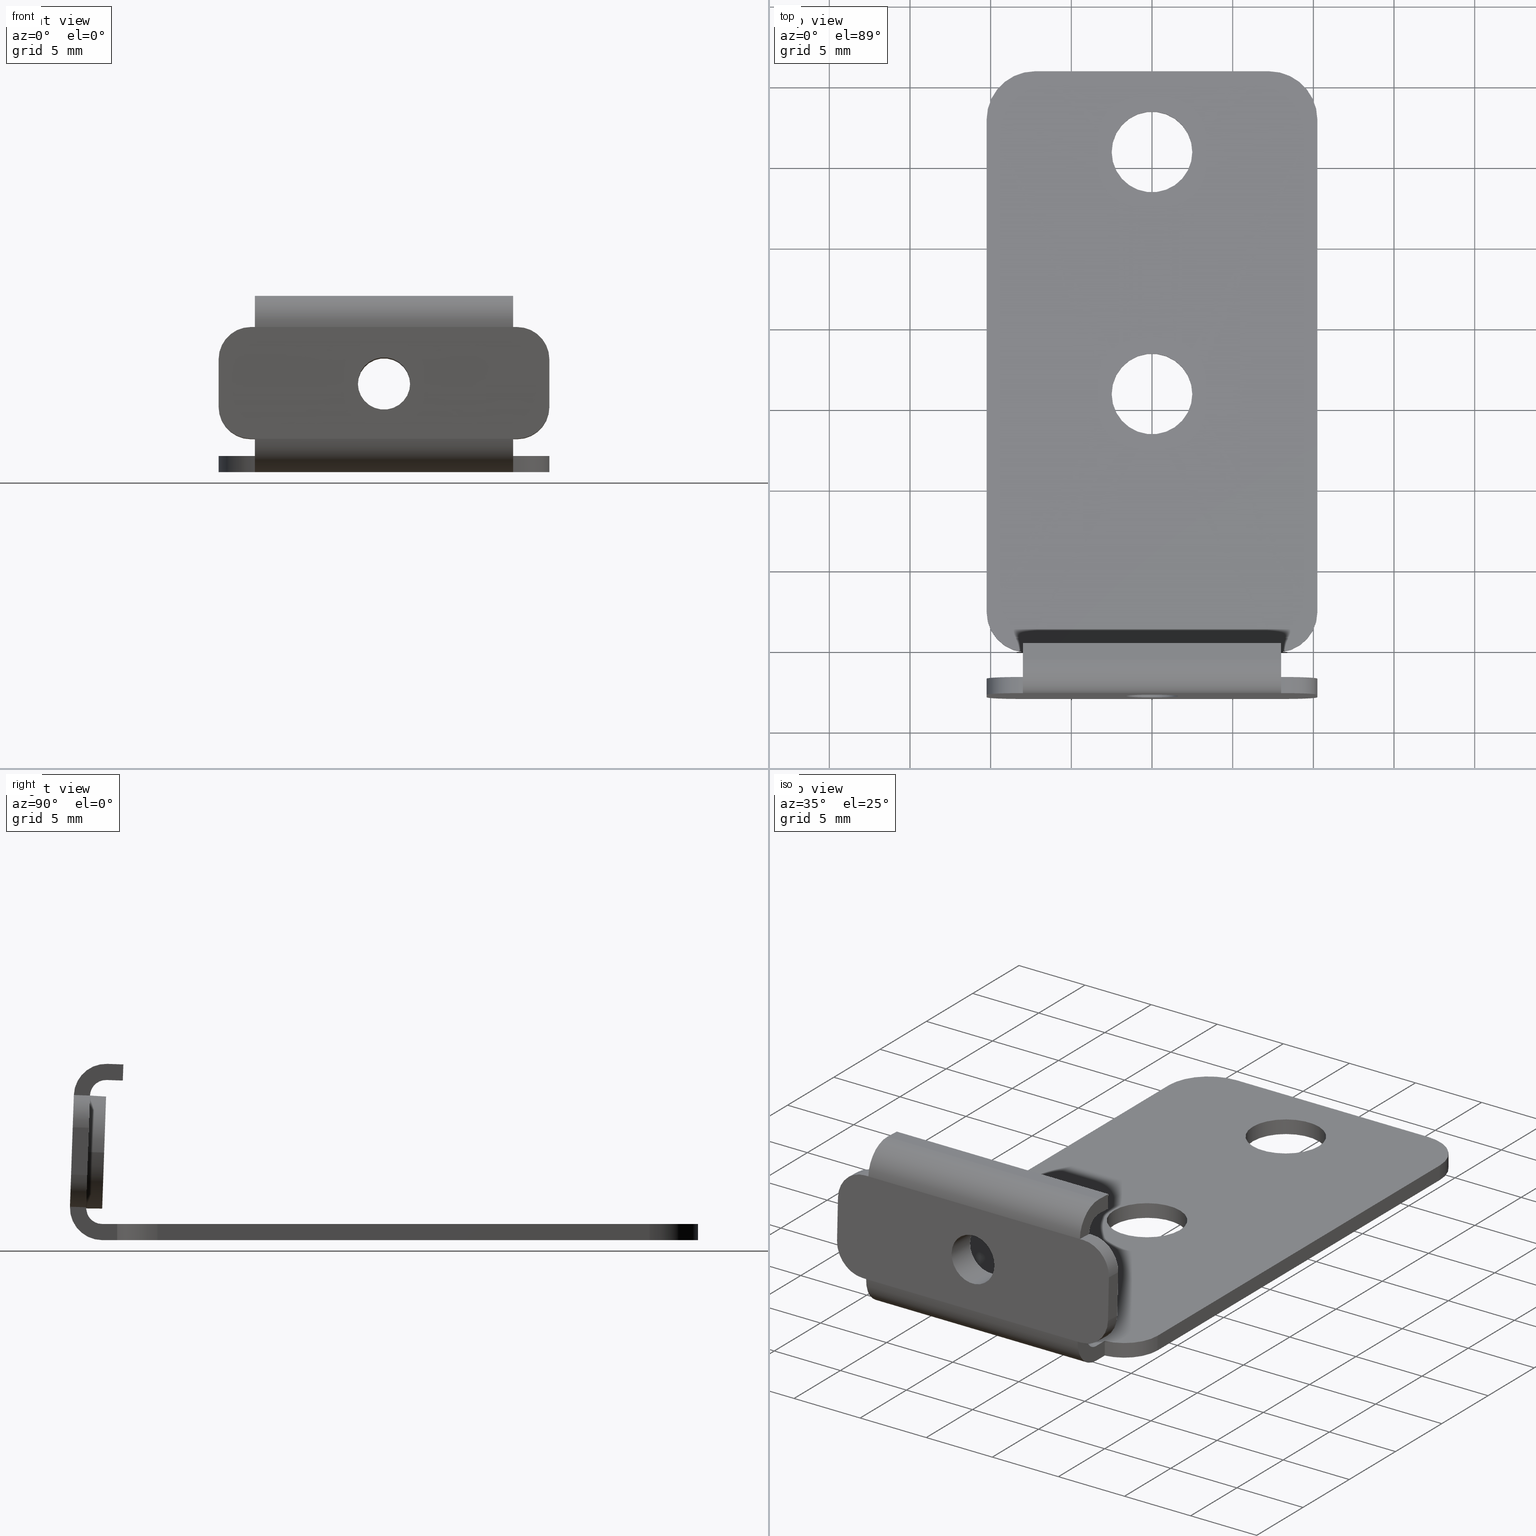
[diagram: canonical four-view strip — front | top / right | iso, engineering-drawing reading convention]
A machine part, canonical four-view strip (front | top / right | iso — engineering-drawing reading convention). The complete STEP part file that produces these views, byte-faithful:
ISO-10303-21;
HEADER;
/* Generated by software containing ST-Developer
 * from STEP Tools, Inc. (www.steptools.com) 
 */

FILE_DESCRIPTION(
/* description */ ('Lasche'),
/* implementation_level */ '2;1');

FILE_NAME(
/* name */ '100002722.stp',
/* time_stamp */ '2024-01-18T08:42:39+01:00',
/* author */ ('selema'),
/* organization */ (''),
/* preprocessor_version */ 'ST-DEVELOPER v20',
/* originating_system */ 'Autodesk Inventor 2024',
/* authorisation */ '');

FILE_SCHEMA (('AUTOMOTIVE_DESIGN { 1 0 10303 214 3 1 1 }'));
ENDSEC;

DATA;
#10=MECHANICAL_DESIGN_GEOMETRIC_PRESENTATION_REPRESENTATION('',(#13),#1276);
#11=SHAPE_REPRESENTATION_RELATIONSHIP('SRR','None',#1283,#12);
#12=ADVANCED_BREP_SHAPE_REPRESENTATION('',(#14),#1275);
#13=STYLED_ITEM('',(#1292),#14);
#14=MANIFOLD_SOLID_BREP('Volumenk\X\F6rper2',#738);
#15=B_SPLINE_CURVE_WITH_KNOTS('',3,(#1148,#1149,#1150,#1151,#1152,#1153),
 .UNSPECIFIED.,.F.,.F.,(4,2,4),(0.245160806914058,0.312360595900493,0.379560384886928),
 .UNSPECIFIED.);
#16=FACE_BOUND('',#99,.T.);
#17=FACE_BOUND('',#106,.T.);
#18=FACE_BOUND('',#123,.T.);
#19=FACE_BOUND('',#124,.T.);
#20=FACE_BOUND('',#136,.T.);
#21=FACE_BOUND('',#137,.T.);
#22=PLANE('',#764);
#23=PLANE('',#765);
#24=PLANE('',#770);
#25=PLANE('',#771);
#26=PLANE('',#775);
#27=PLANE('',#776);
#28=PLANE('',#781);
#29=PLANE('',#782);
#30=PLANE('',#789);
#31=PLANE('',#796);
#32=PLANE('',#797);
#33=PLANE('',#798);
#34=PLANE('',#800);
#35=PLANE('',#802);
#36=PLANE('',#803);
#37=PLANE('',#804);
#38=PLANE('',#806);
#39=PLANE('',#810);
#40=PLANE('',#811);
#41=PLANE('',#812);
#42=PLANE('',#813);
#43=PLANE('',#824);
#44=PLANE('',#829);
#45=PLANE('',#832);
#46=PLANE('',#835);
#47=PLANE('',#836);
#48=FACE_OUTER_BOUND('',#90,.T.);
#49=FACE_OUTER_BOUND('',#91,.T.);
#50=FACE_OUTER_BOUND('',#92,.T.);
#51=FACE_OUTER_BOUND('',#93,.T.);
#52=FACE_OUTER_BOUND('',#94,.T.);
#53=FACE_OUTER_BOUND('',#95,.T.);
#54=FACE_OUTER_BOUND('',#96,.T.);
#55=FACE_OUTER_BOUND('',#97,.T.);
#56=FACE_OUTER_BOUND('',#98,.T.);
#57=FACE_OUTER_BOUND('',#100,.T.);
#58=FACE_OUTER_BOUND('',#101,.T.);
#59=FACE_OUTER_BOUND('',#102,.T.);
#60=FACE_OUTER_BOUND('',#103,.T.);
#61=FACE_OUTER_BOUND('',#104,.T.);
#62=FACE_OUTER_BOUND('',#105,.T.);
#63=FACE_OUTER_BOUND('',#107,.T.);
#64=FACE_OUTER_BOUND('',#108,.T.);
#65=FACE_OUTER_BOUND('',#109,.T.);
#66=FACE_OUTER_BOUND('',#110,.T.);
#67=FACE_OUTER_BOUND('',#111,.T.);
#68=FACE_OUTER_BOUND('',#112,.T.);
#69=FACE_OUTER_BOUND('',#113,.T.);
#70=FACE_OUTER_BOUND('',#114,.T.);
#71=FACE_OUTER_BOUND('',#115,.T.);
#72=FACE_OUTER_BOUND('',#116,.T.);
#73=FACE_OUTER_BOUND('',#117,.T.);
#74=FACE_OUTER_BOUND('',#118,.T.);
#75=FACE_OUTER_BOUND('',#119,.T.);
#76=FACE_OUTER_BOUND('',#120,.T.);
#77=FACE_OUTER_BOUND('',#121,.T.);
#78=FACE_OUTER_BOUND('',#122,.T.);
#79=FACE_OUTER_BOUND('',#125,.T.);
#80=FACE_OUTER_BOUND('',#126,.T.);
#81=FACE_OUTER_BOUND('',#127,.T.);
#82=FACE_OUTER_BOUND('',#128,.T.);
#83=FACE_OUTER_BOUND('',#129,.T.);
#84=FACE_OUTER_BOUND('',#130,.T.);
#85=FACE_OUTER_BOUND('',#131,.T.);
#86=FACE_OUTER_BOUND('',#132,.T.);
#87=FACE_OUTER_BOUND('',#133,.T.);
#88=FACE_OUTER_BOUND('',#134,.T.);
#89=FACE_OUTER_BOUND('',#135,.T.);
#90=EDGE_LOOP('',(#474,#475,#476,#477));
#91=EDGE_LOOP('',(#478,#479,#480,#481));
#92=EDGE_LOOP('',(#482,#483,#484,#485,#486,#487,#488,#489));
#93=EDGE_LOOP('',(#490,#491,#492,#493));
#94=EDGE_LOOP('',(#494,#495,#496,#497));
#95=EDGE_LOOP('',(#498,#499,#500,#501));
#96=EDGE_LOOP('',(#502,#503,#504,#505));
#97=EDGE_LOOP('',(#506,#507,#508,#509));
#98=EDGE_LOOP('',(#510,#511,#512,#513,#514,#515,#516,#517,#518,#519,#520,
#521));
#99=EDGE_LOOP('',(#522));
#100=EDGE_LOOP('',(#523,#524,#525,#526));
#101=EDGE_LOOP('',(#527,#528,#529,#530));
#102=EDGE_LOOP('',(#531,#532,#533,#534));
#103=EDGE_LOOP('',(#535,#536,#537,#538));
#104=EDGE_LOOP('',(#539,#540,#541,#542,#543,#544,#545));
#105=EDGE_LOOP('',(#546));
#106=EDGE_LOOP('',(#547));
#107=EDGE_LOOP('',(#548,#549,#550,#551,#552,#553));
#108=EDGE_LOOP('',(#554,#555,#556,#557));
#109=EDGE_LOOP('',(#558,#559,#560,#561));
#110=EDGE_LOOP('',(#562,#563,#564,#565));
#111=EDGE_LOOP('',(#566,#567,#568,#569));
#112=EDGE_LOOP('',(#570,#571,#572,#573));
#113=EDGE_LOOP('',(#574,#575,#576,#577));
#114=EDGE_LOOP('',(#578,#579,#580,#581));
#115=EDGE_LOOP('',(#582,#583,#584,#585));
#116=EDGE_LOOP('',(#586,#587,#588,#589,#590));
#117=EDGE_LOOP('',(#591,#592,#593,#594,#595,#596,#597,#598,#599));
#118=EDGE_LOOP('',(#600,#601,#602,#603));
#119=EDGE_LOOP('',(#604,#605,#606,#607));
#120=EDGE_LOOP('',(#608,#609,#610,#611));
#121=EDGE_LOOP('',(#612,#613,#614,#615));
#122=EDGE_LOOP('',(#616,#617,#618,#619,#620,#621,#622,#623,#624,#625));
#123=EDGE_LOOP('',(#626));
#124=EDGE_LOOP('',(#627));
#125=EDGE_LOOP('',(#628,#629,#630,#631));
#126=EDGE_LOOP('',(#632,#633,#634,#635));
#127=EDGE_LOOP('',(#636,#637,#638,#639));
#128=EDGE_LOOP('',(#640,#641,#642,#643));
#129=EDGE_LOOP('',(#644,#645,#646,#647));
#130=EDGE_LOOP('',(#648,#649,#650,#651));
#131=EDGE_LOOP('',(#652,#653,#654,#655));
#132=EDGE_LOOP('',(#656,#657,#658,#659));
#133=EDGE_LOOP('',(#660,#661,#662,#663));
#134=EDGE_LOOP('',(#664,#665,#666,#667));
#135=EDGE_LOOP('',(#668,#669,#670,#671,#672,#673,#674,#675,#676,#677));
#136=EDGE_LOOP('',(#678));
#137=EDGE_LOOP('',(#679));
#138=LINE('',#1065,#206);
#139=LINE('',#1068,#207);
#140=LINE('',#1071,#208);
#141=LINE('',#1073,#209);
#142=LINE('',#1074,#210);
#143=LINE('',#1077,#211);
#144=LINE('',#1081,#212);
#145=LINE('',#1083,#213);
#146=LINE('',#1086,#214);
#147=LINE('',#1089,#215);
#148=LINE('',#1092,#216);
#149=LINE('',#1095,#217);
#150=LINE('',#1096,#218);
#151=LINE('',#1098,#219);
#152=LINE('',#1104,#220);
#153=LINE('',#1107,#221);
#154=LINE('',#1110,#222);
#155=LINE('',#1112,#223);
#156=LINE('',#1113,#224);
#157=LINE('',#1115,#225);
#158=LINE('',#1117,#226);
#159=LINE('',#1121,#227);
#160=LINE('',#1122,#228);
#161=LINE('',#1129,#229);
#162=LINE('',#1130,#230);
#163=LINE('',#1133,#231);
#164=LINE('',#1134,#232);
#165=LINE('',#1136,#233);
#166=LINE('',#1140,#234);
#167=LINE('',#1145,#235);
#168=LINE('',#1157,#236);
#169=LINE('',#1161,#237);
#170=LINE('',#1166,#238);
#171=LINE('',#1171,#239);
#172=LINE('',#1173,#240);
#173=LINE('',#1175,#241);
#174=LINE('',#1176,#242);
#175=LINE('',#1179,#243);
#176=LINE('',#1181,#244);
#177=LINE('',#1182,#245);
#178=LINE('',#1184,#246);
#179=LINE('',#1190,#247);
#180=LINE('',#1191,#248);
#181=LINE('',#1193,#249);
#182=LINE('',#1196,#250);
#183=LINE('',#1202,#251);
#184=LINE('',#1205,#252);
#185=LINE('',#1207,#253);
#186=LINE('',#1210,#254);
#187=LINE('',#1212,#255);
#188=LINE('',#1213,#256);
#189=LINE('',#1216,#257);
#190=LINE('',#1220,#258);
#191=LINE('',#1224,#259);
#192=LINE('',#1228,#260);
#193=LINE('',#1237,#261);
#194=LINE('',#1241,#262);
#195=LINE('',#1245,#263);
#196=LINE('',#1246,#264);
#197=LINE('',#1247,#265);
#198=LINE('',#1251,#266);
#199=LINE('',#1255,#267);
#200=LINE('',#1258,#268);
#201=LINE('',#1259,#269);
#202=LINE('',#1263,#270);
#203=LINE('',#1266,#271);
#204=LINE('',#1267,#272);
#205=LINE('',#1271,#273);
#206=VECTOR('',#843,10.);
#207=VECTOR('',#846,10.);
#208=VECTOR('',#849,10.);
#209=VECTOR('',#850,10.);
#210=VECTOR('',#851,10.);
#211=VECTOR('',#854,10.);
#212=VECTOR('',#857,10.);
#213=VECTOR('',#858,10.);
#214=VECTOR('',#861,10.);
#215=VECTOR('',#864,10.);
#216=VECTOR('',#867,10.);
#217=VECTOR('',#870,10.);
#218=VECTOR('',#871,10.);
#219=VECTOR('',#874,10.);
#220=VECTOR('',#879,10.);
#221=VECTOR('',#882,10.);
#222=VECTOR('',#885,10.);
#223=VECTOR('',#886,10.);
#224=VECTOR('',#887,10.);
#225=VECTOR('',#890,10.);
#226=VECTOR('',#891,10.);
#227=VECTOR('',#894,10.);
#228=VECTOR('',#895,10.);
#229=VECTOR('',#902,10.);
#230=VECTOR('',#903,10.);
#231=VECTOR('',#906,10.);
#232=VECTOR('',#907,10.);
#233=VECTOR('',#910,10.);
#234=VECTOR('',#915,1.621);
#235=VECTOR('',#920,3.5);
#236=VECTOR('',#929,10.);
#237=VECTOR('',#932,10.);
#238=VECTOR('',#937,10.);
#239=VECTOR('',#944,10.);
#240=VECTOR('',#945,1.44);
#241=VECTOR('',#946,10.);
#242=VECTOR('',#947,1.44);
#243=VECTOR('',#950,10.);
#244=VECTOR('',#951,1.44);
#245=VECTOR('',#952,10.);
#246=VECTOR('',#955,10.);
#247=VECTOR('',#964,10.);
#248=VECTOR('',#965,10.);
#249=VECTOR('',#968,10.);
#250=VECTOR('',#973,10.);
#251=VECTOR('',#980,10.);
#252=VECTOR('',#985,10.);
#253=VECTOR('',#988,10.);
#254=VECTOR('',#991,10.);
#255=VECTOR('',#992,10.);
#256=VECTOR('',#993,10.);
#257=VECTOR('',#996,10.);
#258=VECTOR('',#999,10.);
#259=VECTOR('',#1002,10.);
#260=VECTOR('',#1005,10.);
#261=VECTOR('',#1016,2.5);
#262=VECTOR('',#1021,2.5);
#263=VECTOR('',#1024,10.);
#264=VECTOR('',#1025,10.);
#265=VECTOR('',#1026,10.);
#266=VECTOR('',#1031,10.);
#267=VECTOR('',#1036,10.);
#268=VECTOR('',#1039,10.);
#269=VECTOR('',#1040,10.);
#270=VECTOR('',#1045,10.);
#271=VECTOR('',#1048,10.);
#272=VECTOR('',#1049,10.);
#273=VECTOR('',#1056,10.);
#274=CIRCLE('',#762,2.);
#275=CIRCLE('',#763,2.);
#276=CIRCLE('',#766,2.);
#277=CIRCLE('',#767,3.5);
#278=CIRCLE('',#769,2.);
#279=CIRCLE('',#773,2.);
#280=CIRCLE('',#774,2.);
#281=CIRCLE('',#777,2.);
#282=CIRCLE('',#778,1.621);
#283=CIRCLE('',#780,2.);
#284=CIRCLE('',#784,1.621);
#285=CIRCLE('',#786,3.5);
#286=CIRCLE('',#787,3.5);
#287=CIRCLE('',#788,3.5);
#288=CIRCLE('',#791,1.);
#289=CIRCLE('',#792,1.);
#290=CIRCLE('',#794,2.);
#291=CIRCLE('',#795,2.);
#292=CIRCLE('',#799,1.);
#293=CIRCLE('',#801,1.);
#294=CIRCLE('',#808,2.);
#295=CIRCLE('',#809,2.);
#296=CIRCLE('',#814,2.5);
#297=CIRCLE('',#815,3.);
#298=CIRCLE('',#816,3.);
#299=CIRCLE('',#817,2.5);
#300=CIRCLE('',#818,2.5);
#301=CIRCLE('',#819,2.5);
#302=CIRCLE('',#821,2.5);
#303=CIRCLE('',#823,2.5);
#304=CIRCLE('',#826,2.5);
#305=CIRCLE('',#828,2.5);
#306=CIRCLE('',#831,3.);
#307=CIRCLE('',#834,3.);
#308=VERTEX_POINT('',#1061);
#309=VERTEX_POINT('',#1062);
#310=VERTEX_POINT('',#1064);
#311=VERTEX_POINT('',#1066);
#312=VERTEX_POINT('',#1070);
#313=VERTEX_POINT('',#1072);
#314=VERTEX_POINT('',#1076);
#315=VERTEX_POINT('',#1078);
#316=VERTEX_POINT('',#1080);
#317=VERTEX_POINT('',#1082);
#318=VERTEX_POINT('',#1084);
#319=VERTEX_POINT('',#1088);
#320=VERTEX_POINT('',#1090);
#321=VERTEX_POINT('',#1094);
#322=VERTEX_POINT('',#1100);
#323=VERTEX_POINT('',#1101);
#324=VERTEX_POINT('',#1103);
#325=VERTEX_POINT('',#1105);
#326=VERTEX_POINT('',#1109);
#327=VERTEX_POINT('',#1111);
#328=VERTEX_POINT('',#1116);
#329=VERTEX_POINT('',#1118);
#330=VERTEX_POINT('',#1120);
#331=VERTEX_POINT('',#1123);
#332=VERTEX_POINT('',#1126);
#333=VERTEX_POINT('',#1127);
#334=VERTEX_POINT('',#1132);
#335=VERTEX_POINT('',#1138);
#336=VERTEX_POINT('',#1142);
#337=VERTEX_POINT('',#1144);
#338=VERTEX_POINT('',#1146);
#339=VERTEX_POINT('',#1158);
#340=VERTEX_POINT('',#1160);
#341=VERTEX_POINT('',#1164);
#342=VERTEX_POINT('',#1165);
#343=VERTEX_POINT('',#1170);
#344=VERTEX_POINT('',#1172);
#345=VERTEX_POINT('',#1174);
#346=VERTEX_POINT('',#1178);
#347=VERTEX_POINT('',#1180);
#348=VERTEX_POINT('',#1189);
#349=VERTEX_POINT('',#1199);
#350=VERTEX_POINT('',#1201);
#351=VERTEX_POINT('',#1209);
#352=VERTEX_POINT('',#1211);
#353=VERTEX_POINT('',#1215);
#354=VERTEX_POINT('',#1217);
#355=VERTEX_POINT('',#1219);
#356=VERTEX_POINT('',#1221);
#357=VERTEX_POINT('',#1223);
#358=VERTEX_POINT('',#1225);
#359=VERTEX_POINT('',#1227);
#360=VERTEX_POINT('',#1230);
#361=VERTEX_POINT('',#1232);
#362=VERTEX_POINT('',#1235);
#363=VERTEX_POINT('',#1239);
#364=VERTEX_POINT('',#1243);
#365=VERTEX_POINT('',#1244);
#366=VERTEX_POINT('',#1249);
#367=VERTEX_POINT('',#1253);
#368=VERTEX_POINT('',#1257);
#369=VERTEX_POINT('',#1261);
#370=VERTEX_POINT('',#1265);
#371=EDGE_CURVE('',#308,#309,#274,.T.);
#372=EDGE_CURVE('',#309,#310,#138,.T.);
#373=EDGE_CURVE('',#310,#311,#275,.T.);
#374=EDGE_CURVE('',#311,#308,#139,.T.);
#375=EDGE_CURVE('',#312,#309,#140,.T.);
#376=EDGE_CURVE('',#312,#313,#141,.T.);
#377=EDGE_CURVE('',#310,#313,#142,.T.);
#378=EDGE_CURVE('',#308,#314,#143,.T.);
#379=EDGE_CURVE('',#315,#314,#276,.T.);
#380=EDGE_CURVE('',#315,#316,#144,.T.);
#381=EDGE_CURVE('',#316,#317,#145,.T.);
#382=EDGE_CURVE('',#317,#318,#277,.T.);
#383=EDGE_CURVE('',#318,#312,#146,.T.);
#384=EDGE_CURVE('',#314,#319,#147,.T.);
#385=EDGE_CURVE('',#319,#320,#278,.T.);
#386=EDGE_CURVE('',#320,#315,#148,.T.);
#387=EDGE_CURVE('',#321,#320,#149,.T.);
#388=EDGE_CURVE('',#321,#316,#150,.T.);
#389=EDGE_CURVE('',#319,#311,#151,.T.);
#390=EDGE_CURVE('',#322,#323,#279,.T.);
#391=EDGE_CURVE('',#323,#324,#152,.T.);
#392=EDGE_CURVE('',#324,#325,#280,.T.);
#393=EDGE_CURVE('',#325,#322,#153,.T.);
#394=EDGE_CURVE('',#325,#326,#154,.T.);
#395=EDGE_CURVE('',#326,#327,#155,.T.);
#396=EDGE_CURVE('',#327,#322,#156,.T.);
#397=EDGE_CURVE('',#313,#326,#157,.T.);
#398=EDGE_CURVE('',#328,#324,#158,.T.);
#399=EDGE_CURVE('',#329,#328,#281,.T.);
#400=EDGE_CURVE('',#330,#329,#159,.T.);
#401=EDGE_CURVE('',#330,#321,#160,.T.);
#402=EDGE_CURVE('',#331,#331,#282,.T.);
#403=EDGE_CURVE('',#332,#333,#283,.T.);
#404=EDGE_CURVE('',#333,#329,#161,.T.);
#405=EDGE_CURVE('',#328,#332,#162,.T.);
#406=EDGE_CURVE('',#333,#334,#163,.T.);
#407=EDGE_CURVE('',#334,#330,#164,.T.);
#408=EDGE_CURVE('',#323,#332,#165,.T.);
#409=EDGE_CURVE('',#335,#335,#284,.T.);
#410=EDGE_CURVE('',#335,#331,#166,.T.);
#411=EDGE_CURVE('',#336,#336,#285,.T.);
#412=EDGE_CURVE('',#336,#337,#167,.T.);
#413=EDGE_CURVE('',#338,#337,#286,.T.);
#414=EDGE_CURVE('',#318,#338,#15,.T.);
#415=EDGE_CURVE('',#337,#317,#287,.T.);
#416=EDGE_CURVE('',#327,#338,#168,.T.);
#417=EDGE_CURVE('',#327,#339,#288,.T.);
#418=EDGE_CURVE('',#340,#339,#169,.T.);
#419=EDGE_CURVE('',#312,#340,#289,.T.);
#420=EDGE_CURVE('',#341,#342,#170,.T.);
#421=EDGE_CURVE('',#321,#341,#290,.T.);
#422=EDGE_CURVE('',#342,#330,#291,.T.);
#423=EDGE_CURVE('',#342,#343,#171,.T.);
#424=EDGE_CURVE('',#344,#343,#172,.T.);
#425=EDGE_CURVE('',#344,#345,#173,.T.);
#426=EDGE_CURVE('',#345,#342,#174,.T.);
#427=EDGE_CURVE('',#343,#346,#175,.T.);
#428=EDGE_CURVE('',#347,#346,#176,.T.);
#429=EDGE_CURVE('',#347,#344,#177,.T.);
#430=EDGE_CURVE('',#346,#341,#178,.T.);
#431=EDGE_CURVE('',#346,#316,#292,.T.);
#432=EDGE_CURVE('',#343,#334,#293,.T.);
#433=EDGE_CURVE('',#341,#348,#179,.T.);
#434=EDGE_CURVE('',#347,#348,#180,.T.);
#435=EDGE_CURVE('',#348,#345,#181,.T.);
#436=EDGE_CURVE('',#317,#334,#182,.T.);
#437=EDGE_CURVE('',#349,#313,#294,.T.);
#438=EDGE_CURVE('',#350,#349,#183,.T.);
#439=EDGE_CURVE('',#326,#350,#295,.T.);
#440=EDGE_CURVE('',#349,#340,#184,.T.);
#441=EDGE_CURVE('',#339,#350,#185,.T.);
#442=EDGE_CURVE('',#351,#350,#186,.T.);
#443=EDGE_CURVE('',#352,#351,#187,.T.);
#444=EDGE_CURVE('',#352,#339,#188,.T.);
#445=EDGE_CURVE('',#349,#353,#189,.T.);
#446=EDGE_CURVE('',#353,#354,#296,.T.);
#447=EDGE_CURVE('',#354,#355,#190,.T.);
#448=EDGE_CURVE('',#355,#356,#297,.T.);
#449=EDGE_CURVE('',#356,#357,#191,.T.);
#450=EDGE_CURVE('',#357,#358,#298,.T.);
#451=EDGE_CURVE('',#358,#359,#192,.T.);
#452=EDGE_CURVE('',#359,#351,#299,.T.);
#453=EDGE_CURVE('',#360,#360,#300,.T.);
#454=EDGE_CURVE('',#361,#361,#301,.T.);
#455=EDGE_CURVE('',#362,#362,#302,.T.);
#456=EDGE_CURVE('',#362,#361,#193,.T.);
#457=EDGE_CURVE('',#363,#363,#303,.T.);
#458=EDGE_CURVE('',#363,#360,#194,.T.);
#459=EDGE_CURVE('',#364,#365,#195,.T.);
#460=EDGE_CURVE('',#364,#355,#196,.T.);
#461=EDGE_CURVE('',#365,#354,#197,.T.);
#462=EDGE_CURVE('',#365,#366,#304,.T.);
#463=EDGE_CURVE('',#366,#353,#198,.T.);
#464=EDGE_CURVE('',#352,#367,#305,.T.);
#465=EDGE_CURVE('',#367,#359,#199,.T.);
#466=EDGE_CURVE('',#367,#368,#200,.T.);
#467=EDGE_CURVE('',#368,#358,#201,.T.);
#468=EDGE_CURVE('',#368,#369,#306,.T.);
#469=EDGE_CURVE('',#369,#357,#202,.T.);
#470=EDGE_CURVE('',#369,#370,#203,.T.);
#471=EDGE_CURVE('',#370,#356,#204,.T.);
#472=EDGE_CURVE('',#370,#364,#307,.T.);
#473=EDGE_CURVE('',#340,#366,#205,.T.);
#474=ORIENTED_EDGE('',*,*,#371,.T.);
#475=ORIENTED_EDGE('',*,*,#372,.T.);
#476=ORIENTED_EDGE('',*,*,#373,.T.);
#477=ORIENTED_EDGE('',*,*,#374,.T.);
#478=ORIENTED_EDGE('',*,*,#372,.F.);
#479=ORIENTED_EDGE('',*,*,#375,.F.);
#480=ORIENTED_EDGE('',*,*,#376,.T.);
#481=ORIENTED_EDGE('',*,*,#377,.F.);
#482=ORIENTED_EDGE('',*,*,#371,.F.);
#483=ORIENTED_EDGE('',*,*,#378,.T.);
#484=ORIENTED_EDGE('',*,*,#379,.F.);
#485=ORIENTED_EDGE('',*,*,#380,.T.);
#486=ORIENTED_EDGE('',*,*,#381,.T.);
#487=ORIENTED_EDGE('',*,*,#382,.T.);
#488=ORIENTED_EDGE('',*,*,#383,.T.);
#489=ORIENTED_EDGE('',*,*,#375,.T.);
#490=ORIENTED_EDGE('',*,*,#379,.T.);
#491=ORIENTED_EDGE('',*,*,#384,.T.);
#492=ORIENTED_EDGE('',*,*,#385,.T.);
#493=ORIENTED_EDGE('',*,*,#386,.T.);
#494=ORIENTED_EDGE('',*,*,#386,.F.);
#495=ORIENTED_EDGE('',*,*,#387,.F.);
#496=ORIENTED_EDGE('',*,*,#388,.T.);
#497=ORIENTED_EDGE('',*,*,#380,.F.);
#498=ORIENTED_EDGE('',*,*,#374,.F.);
#499=ORIENTED_EDGE('',*,*,#389,.F.);
#500=ORIENTED_EDGE('',*,*,#384,.F.);
#501=ORIENTED_EDGE('',*,*,#378,.F.);
#502=ORIENTED_EDGE('',*,*,#390,.T.);
#503=ORIENTED_EDGE('',*,*,#391,.T.);
#504=ORIENTED_EDGE('',*,*,#392,.T.);
#505=ORIENTED_EDGE('',*,*,#393,.T.);
#506=ORIENTED_EDGE('',*,*,#393,.F.);
#507=ORIENTED_EDGE('',*,*,#394,.T.);
#508=ORIENTED_EDGE('',*,*,#395,.T.);
#509=ORIENTED_EDGE('',*,*,#396,.T.);
#510=ORIENTED_EDGE('',*,*,#373,.F.);
#511=ORIENTED_EDGE('',*,*,#377,.T.);
#512=ORIENTED_EDGE('',*,*,#397,.T.);
#513=ORIENTED_EDGE('',*,*,#394,.F.);
#514=ORIENTED_EDGE('',*,*,#392,.F.);
#515=ORIENTED_EDGE('',*,*,#398,.F.);
#516=ORIENTED_EDGE('',*,*,#399,.F.);
#517=ORIENTED_EDGE('',*,*,#400,.F.);
#518=ORIENTED_EDGE('',*,*,#401,.T.);
#519=ORIENTED_EDGE('',*,*,#387,.T.);
#520=ORIENTED_EDGE('',*,*,#385,.F.);
#521=ORIENTED_EDGE('',*,*,#389,.T.);
#522=ORIENTED_EDGE('',*,*,#402,.T.);
#523=ORIENTED_EDGE('',*,*,#403,.T.);
#524=ORIENTED_EDGE('',*,*,#404,.T.);
#525=ORIENTED_EDGE('',*,*,#399,.T.);
#526=ORIENTED_EDGE('',*,*,#405,.T.);
#527=ORIENTED_EDGE('',*,*,#404,.F.);
#528=ORIENTED_EDGE('',*,*,#406,.T.);
#529=ORIENTED_EDGE('',*,*,#407,.T.);
#530=ORIENTED_EDGE('',*,*,#400,.T.);
#531=ORIENTED_EDGE('',*,*,#391,.F.);
#532=ORIENTED_EDGE('',*,*,#408,.T.);
#533=ORIENTED_EDGE('',*,*,#405,.F.);
#534=ORIENTED_EDGE('',*,*,#398,.T.);
#535=ORIENTED_EDGE('',*,*,#409,.F.);
#536=ORIENTED_EDGE('',*,*,#410,.T.);
#537=ORIENTED_EDGE('',*,*,#402,.F.);
#538=ORIENTED_EDGE('',*,*,#410,.F.);
#539=ORIENTED_EDGE('',*,*,#411,.T.);
#540=ORIENTED_EDGE('',*,*,#412,.T.);
#541=ORIENTED_EDGE('',*,*,#413,.F.);
#542=ORIENTED_EDGE('',*,*,#414,.F.);
#543=ORIENTED_EDGE('',*,*,#382,.F.);
#544=ORIENTED_EDGE('',*,*,#415,.F.);
#545=ORIENTED_EDGE('',*,*,#412,.F.);
#546=ORIENTED_EDGE('',*,*,#411,.F.);
#547=ORIENTED_EDGE('',*,*,#409,.T.);
#548=ORIENTED_EDGE('',*,*,#414,.T.);
#549=ORIENTED_EDGE('',*,*,#416,.F.);
#550=ORIENTED_EDGE('',*,*,#417,.T.);
#551=ORIENTED_EDGE('',*,*,#418,.F.);
#552=ORIENTED_EDGE('',*,*,#419,.F.);
#553=ORIENTED_EDGE('',*,*,#383,.F.);
#554=ORIENTED_EDGE('',*,*,#420,.F.);
#555=ORIENTED_EDGE('',*,*,#421,.F.);
#556=ORIENTED_EDGE('',*,*,#401,.F.);
#557=ORIENTED_EDGE('',*,*,#422,.F.);
#558=ORIENTED_EDGE('',*,*,#423,.T.);
#559=ORIENTED_EDGE('',*,*,#424,.F.);
#560=ORIENTED_EDGE('',*,*,#425,.T.);
#561=ORIENTED_EDGE('',*,*,#426,.T.);
#562=ORIENTED_EDGE('',*,*,#427,.T.);
#563=ORIENTED_EDGE('',*,*,#428,.F.);
#564=ORIENTED_EDGE('',*,*,#429,.T.);
#565=ORIENTED_EDGE('',*,*,#424,.T.);
#566=ORIENTED_EDGE('',*,*,#430,.F.);
#567=ORIENTED_EDGE('',*,*,#431,.T.);
#568=ORIENTED_EDGE('',*,*,#388,.F.);
#569=ORIENTED_EDGE('',*,*,#421,.T.);
#570=ORIENTED_EDGE('',*,*,#423,.F.);
#571=ORIENTED_EDGE('',*,*,#422,.T.);
#572=ORIENTED_EDGE('',*,*,#407,.F.);
#573=ORIENTED_EDGE('',*,*,#432,.F.);
#574=ORIENTED_EDGE('',*,*,#430,.T.);
#575=ORIENTED_EDGE('',*,*,#433,.T.);
#576=ORIENTED_EDGE('',*,*,#434,.F.);
#577=ORIENTED_EDGE('',*,*,#428,.T.);
#578=ORIENTED_EDGE('',*,*,#435,.T.);
#579=ORIENTED_EDGE('',*,*,#425,.F.);
#580=ORIENTED_EDGE('',*,*,#429,.F.);
#581=ORIENTED_EDGE('',*,*,#434,.T.);
#582=ORIENTED_EDGE('',*,*,#420,.T.);
#583=ORIENTED_EDGE('',*,*,#426,.F.);
#584=ORIENTED_EDGE('',*,*,#435,.F.);
#585=ORIENTED_EDGE('',*,*,#433,.F.);
#586=ORIENTED_EDGE('',*,*,#427,.F.);
#587=ORIENTED_EDGE('',*,*,#432,.T.);
#588=ORIENTED_EDGE('',*,*,#436,.F.);
#589=ORIENTED_EDGE('',*,*,#381,.F.);
#590=ORIENTED_EDGE('',*,*,#431,.F.);
#591=ORIENTED_EDGE('',*,*,#390,.F.);
#592=ORIENTED_EDGE('',*,*,#396,.F.);
#593=ORIENTED_EDGE('',*,*,#416,.T.);
#594=ORIENTED_EDGE('',*,*,#413,.T.);
#595=ORIENTED_EDGE('',*,*,#415,.T.);
#596=ORIENTED_EDGE('',*,*,#436,.T.);
#597=ORIENTED_EDGE('',*,*,#406,.F.);
#598=ORIENTED_EDGE('',*,*,#403,.F.);
#599=ORIENTED_EDGE('',*,*,#408,.F.);
#600=ORIENTED_EDGE('',*,*,#397,.F.);
#601=ORIENTED_EDGE('',*,*,#437,.F.);
#602=ORIENTED_EDGE('',*,*,#438,.F.);
#603=ORIENTED_EDGE('',*,*,#439,.F.);
#604=ORIENTED_EDGE('',*,*,#376,.F.);
#605=ORIENTED_EDGE('',*,*,#419,.T.);
#606=ORIENTED_EDGE('',*,*,#440,.F.);
#607=ORIENTED_EDGE('',*,*,#437,.T.);
#608=ORIENTED_EDGE('',*,*,#395,.F.);
#609=ORIENTED_EDGE('',*,*,#439,.T.);
#610=ORIENTED_EDGE('',*,*,#441,.F.);
#611=ORIENTED_EDGE('',*,*,#417,.F.);
#612=ORIENTED_EDGE('',*,*,#441,.T.);
#613=ORIENTED_EDGE('',*,*,#442,.F.);
#614=ORIENTED_EDGE('',*,*,#443,.F.);
#615=ORIENTED_EDGE('',*,*,#444,.T.);
#616=ORIENTED_EDGE('',*,*,#438,.T.);
#617=ORIENTED_EDGE('',*,*,#445,.T.);
#618=ORIENTED_EDGE('',*,*,#446,.T.);
#619=ORIENTED_EDGE('',*,*,#447,.T.);
#620=ORIENTED_EDGE('',*,*,#448,.T.);
#621=ORIENTED_EDGE('',*,*,#449,.T.);
#622=ORIENTED_EDGE('',*,*,#450,.T.);
#623=ORIENTED_EDGE('',*,*,#451,.T.);
#624=ORIENTED_EDGE('',*,*,#452,.T.);
#625=ORIENTED_EDGE('',*,*,#442,.T.);
#626=ORIENTED_EDGE('',*,*,#453,.T.);
#627=ORIENTED_EDGE('',*,*,#454,.T.);
#628=ORIENTED_EDGE('',*,*,#455,.F.);
#629=ORIENTED_EDGE('',*,*,#456,.T.);
#630=ORIENTED_EDGE('',*,*,#454,.F.);
#631=ORIENTED_EDGE('',*,*,#456,.F.);
#632=ORIENTED_EDGE('',*,*,#457,.F.);
#633=ORIENTED_EDGE('',*,*,#458,.T.);
#634=ORIENTED_EDGE('',*,*,#453,.F.);
#635=ORIENTED_EDGE('',*,*,#458,.F.);
#636=ORIENTED_EDGE('',*,*,#459,.F.);
#637=ORIENTED_EDGE('',*,*,#460,.T.);
#638=ORIENTED_EDGE('',*,*,#447,.F.);
#639=ORIENTED_EDGE('',*,*,#461,.F.);
#640=ORIENTED_EDGE('',*,*,#462,.F.);
#641=ORIENTED_EDGE('',*,*,#461,.T.);
#642=ORIENTED_EDGE('',*,*,#446,.F.);
#643=ORIENTED_EDGE('',*,*,#463,.F.);
#644=ORIENTED_EDGE('',*,*,#464,.F.);
#645=ORIENTED_EDGE('',*,*,#443,.T.);
#646=ORIENTED_EDGE('',*,*,#452,.F.);
#647=ORIENTED_EDGE('',*,*,#465,.F.);
#648=ORIENTED_EDGE('',*,*,#466,.F.);
#649=ORIENTED_EDGE('',*,*,#465,.T.);
#650=ORIENTED_EDGE('',*,*,#451,.F.);
#651=ORIENTED_EDGE('',*,*,#467,.F.);
#652=ORIENTED_EDGE('',*,*,#468,.F.);
#653=ORIENTED_EDGE('',*,*,#467,.T.);
#654=ORIENTED_EDGE('',*,*,#450,.F.);
#655=ORIENTED_EDGE('',*,*,#469,.F.);
#656=ORIENTED_EDGE('',*,*,#470,.F.);
#657=ORIENTED_EDGE('',*,*,#469,.T.);
#658=ORIENTED_EDGE('',*,*,#449,.F.);
#659=ORIENTED_EDGE('',*,*,#471,.F.);
#660=ORIENTED_EDGE('',*,*,#472,.F.);
#661=ORIENTED_EDGE('',*,*,#471,.T.);
#662=ORIENTED_EDGE('',*,*,#448,.F.);
#663=ORIENTED_EDGE('',*,*,#460,.F.);
#664=ORIENTED_EDGE('',*,*,#440,.T.);
#665=ORIENTED_EDGE('',*,*,#473,.T.);
#666=ORIENTED_EDGE('',*,*,#463,.T.);
#667=ORIENTED_EDGE('',*,*,#445,.F.);
#668=ORIENTED_EDGE('',*,*,#418,.T.);
#669=ORIENTED_EDGE('',*,*,#444,.F.);
#670=ORIENTED_EDGE('',*,*,#464,.T.);
#671=ORIENTED_EDGE('',*,*,#466,.T.);
#672=ORIENTED_EDGE('',*,*,#468,.T.);
#673=ORIENTED_EDGE('',*,*,#470,.T.);
#674=ORIENTED_EDGE('',*,*,#472,.T.);
#675=ORIENTED_EDGE('',*,*,#459,.T.);
#676=ORIENTED_EDGE('',*,*,#462,.T.);
#677=ORIENTED_EDGE('',*,*,#473,.F.);
#678=ORIENTED_EDGE('',*,*,#455,.T.);
#679=ORIENTED_EDGE('',*,*,#457,.T.);
#680=CYLINDRICAL_SURFACE('',#761,2.);
#681=CYLINDRICAL_SURFACE('',#768,2.);
#682=CYLINDRICAL_SURFACE('',#772,2.);
#683=CYLINDRICAL_SURFACE('',#779,2.);
#684=CYLINDRICAL_SURFACE('',#783,1.621);
#685=CYLINDRICAL_SURFACE('',#785,3.5);
#686=CYLINDRICAL_SURFACE('',#790,1.);
#687=CYLINDRICAL_SURFACE('',#793,2.);
#688=CYLINDRICAL_SURFACE('',#805,1.);
#689=CYLINDRICAL_SURFACE('',#807,2.);
#690=CYLINDRICAL_SURFACE('',#820,2.5);
#691=CYLINDRICAL_SURFACE('',#822,2.5);
#692=CYLINDRICAL_SURFACE('',#825,2.5);
#693=CYLINDRICAL_SURFACE('',#827,2.5);
#694=CYLINDRICAL_SURFACE('',#830,3.);
#695=CYLINDRICAL_SURFACE('',#833,3.);
#696=ADVANCED_FACE('',(#48),#680,.T.);
#697=ADVANCED_FACE('',(#49),#22,.F.);
#698=ADVANCED_FACE('',(#50),#23,.T.);
#699=ADVANCED_FACE('',(#51),#681,.T.);
#700=ADVANCED_FACE('',(#52),#24,.F.);
#701=ADVANCED_FACE('',(#53),#25,.F.);
#702=ADVANCED_FACE('',(#54),#682,.T.);
#703=ADVANCED_FACE('',(#55),#26,.T.);
#704=ADVANCED_FACE('',(#56,#16),#27,.F.);
#705=ADVANCED_FACE('',(#57),#683,.T.);
#706=ADVANCED_FACE('',(#58),#28,.T.);
#707=ADVANCED_FACE('',(#59),#29,.T.);
#708=ADVANCED_FACE('',(#60),#684,.F.);
#709=ADVANCED_FACE('',(#61),#685,.T.);
#710=ADVANCED_FACE('',(#62,#17),#30,.F.);
#711=ADVANCED_FACE('',(#63),#686,.F.);
#712=ADVANCED_FACE('',(#64),#687,.T.);
#713=ADVANCED_FACE('',(#65),#31,.T.);
#714=ADVANCED_FACE('',(#66),#32,.T.);
#715=ADVANCED_FACE('',(#67),#33,.T.);
#716=ADVANCED_FACE('',(#68),#34,.T.);
#717=ADVANCED_FACE('',(#69),#35,.T.);
#718=ADVANCED_FACE('',(#70),#36,.T.);
#719=ADVANCED_FACE('',(#71),#37,.F.);
#720=ADVANCED_FACE('',(#72),#688,.F.);
#721=ADVANCED_FACE('',(#73),#38,.T.);
#722=ADVANCED_FACE('',(#74),#689,.T.);
#723=ADVANCED_FACE('',(#75),#39,.T.);
#724=ADVANCED_FACE('',(#76),#40,.T.);
#725=ADVANCED_FACE('',(#77),#41,.T.);
#726=ADVANCED_FACE('',(#78,#18,#19),#42,.T.);
#727=ADVANCED_FACE('',(#79),#690,.F.);
#728=ADVANCED_FACE('',(#80),#691,.F.);
#729=ADVANCED_FACE('',(#81),#43,.T.);
#730=ADVANCED_FACE('',(#82),#692,.T.);
#731=ADVANCED_FACE('',(#83),#693,.T.);
#732=ADVANCED_FACE('',(#84),#44,.T.);
#733=ADVANCED_FACE('',(#85),#694,.T.);
#734=ADVANCED_FACE('',(#86),#45,.T.);
#735=ADVANCED_FACE('',(#87),#695,.T.);
#736=ADVANCED_FACE('',(#88),#46,.T.);
#737=ADVANCED_FACE('',(#89,#20,#21),#47,.T.);
#738=CLOSED_SHELL('',(#696,#697,#698,#699,#700,#701,#702,#703,#704,#705,
#706,#707,#708,#709,#710,#711,#712,#713,#714,#715,#716,#717,#718,#719,#720,
#721,#722,#723,#724,#725,#726,#727,#728,#729,#730,#731,#732,#733,#734,#735,
#736,#737));
#739=DERIVED_UNIT_ELEMENT(#742,1.);
#740=DERIVED_UNIT_ELEMENT(#1278,-3.);
#741=DIMENSIONAL_EXPONENTS(0.,1.,0.,0.,0.,0.,0.);
#742=(
CONVERSION_BASED_UNIT('gram',#744)
MASS_UNIT()
NAMED_UNIT(#741)
);
#743=(
MASS_UNIT()
NAMED_UNIT(*)
SI_UNIT(.KILO.,.GRAM.)
);
#744=MASS_MEASURE_WITH_UNIT(MASS_MEASURE(0.001),#743);
#745=DERIVED_UNIT((#739,#740));
#746=MEASURE_REPRESENTATION_ITEM('density measure',
POSITIVE_RATIO_MEASURE(1.),#745);
#747=PROPERTY_DEFINITION_REPRESENTATION(#752,#749);
#748=PROPERTY_DEFINITION_REPRESENTATION(#753,#750);
#749=REPRESENTATION('material name',(#751),#1275);
#750=REPRESENTATION('density',(#746),#1275);
#751=DESCRIPTIVE_REPRESENTATION_ITEM('Allgemein','Allgemein');
#752=PROPERTY_DEFINITION('material property','material name',#1285);
#753=PROPERTY_DEFINITION('material property','density of part',#1285);
#754=DATE_TIME_ROLE('creation_date');
#755=APPLIED_DATE_AND_TIME_ASSIGNMENT(#756,#754,(#1285));
#756=DATE_AND_TIME(#757,#758);
#757=CALENDAR_DATE(2015,21,10);
#758=LOCAL_TIME(0,0,0.,#759);
#759=COORDINATED_UNIVERSAL_TIME_OFFSET(0,0,.BEHIND.);
#760=AXIS2_PLACEMENT_3D('',#1059,#837,#838);
#761=AXIS2_PLACEMENT_3D('',#1060,#839,#840);
#762=AXIS2_PLACEMENT_3D('',#1063,#841,#842);
#763=AXIS2_PLACEMENT_3D('',#1067,#844,#845);
#764=AXIS2_PLACEMENT_3D('',#1069,#847,#848);
#765=AXIS2_PLACEMENT_3D('',#1075,#852,#853);
#766=AXIS2_PLACEMENT_3D('',#1079,#855,#856);
#767=AXIS2_PLACEMENT_3D('',#1085,#859,#860);
#768=AXIS2_PLACEMENT_3D('',#1087,#862,#863);
#769=AXIS2_PLACEMENT_3D('',#1091,#865,#866);
#770=AXIS2_PLACEMENT_3D('',#1093,#868,#869);
#771=AXIS2_PLACEMENT_3D('',#1097,#872,#873);
#772=AXIS2_PLACEMENT_3D('',#1099,#875,#876);
#773=AXIS2_PLACEMENT_3D('',#1102,#877,#878);
#774=AXIS2_PLACEMENT_3D('',#1106,#880,#881);
#775=AXIS2_PLACEMENT_3D('',#1108,#883,#884);
#776=AXIS2_PLACEMENT_3D('',#1114,#888,#889);
#777=AXIS2_PLACEMENT_3D('',#1119,#892,#893);
#778=AXIS2_PLACEMENT_3D('',#1124,#896,#897);
#779=AXIS2_PLACEMENT_3D('',#1125,#898,#899);
#780=AXIS2_PLACEMENT_3D('',#1128,#900,#901);
#781=AXIS2_PLACEMENT_3D('',#1131,#904,#905);
#782=AXIS2_PLACEMENT_3D('',#1135,#908,#909);
#783=AXIS2_PLACEMENT_3D('',#1137,#911,#912);
#784=AXIS2_PLACEMENT_3D('',#1139,#913,#914);
#785=AXIS2_PLACEMENT_3D('',#1141,#916,#917);
#786=AXIS2_PLACEMENT_3D('',#1143,#918,#919);
#787=AXIS2_PLACEMENT_3D('',#1147,#921,#922);
#788=AXIS2_PLACEMENT_3D('',#1154,#923,#924);
#789=AXIS2_PLACEMENT_3D('',#1155,#925,#926);
#790=AXIS2_PLACEMENT_3D('',#1156,#927,#928);
#791=AXIS2_PLACEMENT_3D('',#1159,#930,#931);
#792=AXIS2_PLACEMENT_3D('',#1162,#933,#934);
#793=AXIS2_PLACEMENT_3D('',#1163,#935,#936);
#794=AXIS2_PLACEMENT_3D('',#1167,#938,#939);
#795=AXIS2_PLACEMENT_3D('',#1168,#940,#941);
#796=AXIS2_PLACEMENT_3D('',#1169,#942,#943);
#797=AXIS2_PLACEMENT_3D('',#1177,#948,#949);
#798=AXIS2_PLACEMENT_3D('',#1183,#953,#954);
#799=AXIS2_PLACEMENT_3D('',#1185,#956,#957);
#800=AXIS2_PLACEMENT_3D('',#1186,#958,#959);
#801=AXIS2_PLACEMENT_3D('',#1187,#960,#961);
#802=AXIS2_PLACEMENT_3D('',#1188,#962,#963);
#803=AXIS2_PLACEMENT_3D('',#1192,#966,#967);
#804=AXIS2_PLACEMENT_3D('',#1194,#969,#970);
#805=AXIS2_PLACEMENT_3D('',#1195,#971,#972);
#806=AXIS2_PLACEMENT_3D('',#1197,#974,#975);
#807=AXIS2_PLACEMENT_3D('',#1198,#976,#977);
#808=AXIS2_PLACEMENT_3D('',#1200,#978,#979);
#809=AXIS2_PLACEMENT_3D('',#1203,#981,#982);
#810=AXIS2_PLACEMENT_3D('',#1204,#983,#984);
#811=AXIS2_PLACEMENT_3D('',#1206,#986,#987);
#812=AXIS2_PLACEMENT_3D('',#1208,#989,#990);
#813=AXIS2_PLACEMENT_3D('',#1214,#994,#995);
#814=AXIS2_PLACEMENT_3D('',#1218,#997,#998);
#815=AXIS2_PLACEMENT_3D('',#1222,#1000,#1001);
#816=AXIS2_PLACEMENT_3D('',#1226,#1003,#1004);
#817=AXIS2_PLACEMENT_3D('',#1229,#1006,#1007);
#818=AXIS2_PLACEMENT_3D('',#1231,#1008,#1009);
#819=AXIS2_PLACEMENT_3D('',#1233,#1010,#1011);
#820=AXIS2_PLACEMENT_3D('',#1234,#1012,#1013);
#821=AXIS2_PLACEMENT_3D('',#1236,#1014,#1015);
#822=AXIS2_PLACEMENT_3D('',#1238,#1017,#1018);
#823=AXIS2_PLACEMENT_3D('',#1240,#1019,#1020);
#824=AXIS2_PLACEMENT_3D('',#1242,#1022,#1023);
#825=AXIS2_PLACEMENT_3D('',#1248,#1027,#1028);
#826=AXIS2_PLACEMENT_3D('',#1250,#1029,#1030);
#827=AXIS2_PLACEMENT_3D('',#1252,#1032,#1033);
#828=AXIS2_PLACEMENT_3D('',#1254,#1034,#1035);
#829=AXIS2_PLACEMENT_3D('',#1256,#1037,#1038);
#830=AXIS2_PLACEMENT_3D('',#1260,#1041,#1042);
#831=AXIS2_PLACEMENT_3D('',#1262,#1043,#1044);
#832=AXIS2_PLACEMENT_3D('',#1264,#1046,#1047);
#833=AXIS2_PLACEMENT_3D('',#1268,#1050,#1051);
#834=AXIS2_PLACEMENT_3D('',#1269,#1052,#1053);
#835=AXIS2_PLACEMENT_3D('',#1270,#1054,#1055);
#836=AXIS2_PLACEMENT_3D('',#1272,#1057,#1058);
#837=DIRECTION('axis',(0.,0.,1.));
#838=DIRECTION('refdir',(1.,0.,0.));
#839=DIRECTION('center_axis',(0.,0.999390827019096,-0.0348994967025009));
#840=DIRECTION('ref_axis',(-0.707106781186547,-0.0246776707783362,-0.706676030840835));
#841=DIRECTION('center_axis',(-1.27964073796983E-19,-0.999390827019096,
0.0348994967025009));
#842=DIRECTION('ref_axis',(-0.707106781186547,-0.0246776707783362,-0.706676030840835));
#843=DIRECTION('',(0.,-0.999390827019096,0.0348994967025009));
#844=DIRECTION('center_axis',(-1.27964073796983E-19,0.999390827019096,-0.0348994967025009));
#845=DIRECTION('ref_axis',(-0.707106781186547,-0.0246776707783362,-0.706676030840835));
#846=DIRECTION('',(0.,0.999390827019096,-0.0348994967025009));
#847=DIRECTION('center_axis',(1.25624517331022E-16,0.0348994967025009,0.999390827019096));
#848=DIRECTION('ref_axis',(1.,-4.51211854988796E-18,-1.25543524387553E-16));
#849=DIRECTION('',(-1.,4.25634630680656E-18,1.25552456151096E-16));
#850=DIRECTION('',(0.,-0.999390827019096,0.034899496702501));
#851=DIRECTION('',(1.,-4.51211854988796E-18,-1.25543524387553E-16));
#852=DIRECTION('center_axis',(1.27964073796983E-19,0.999390827019096,-0.0348994967025009));
#853=DIRECTION('ref_axis',(1.,-1.278861215407E-19,4.46588177151641E-21));
#854=DIRECTION('',(0.,0.0348994967025009,0.999390827019096));
#855=DIRECTION('center_axis',(-1.27964073796983E-19,-0.999390827019096,
0.0348994967025009));
#856=DIRECTION('ref_axis',(-0.707106781186548,0.0246776707783358,0.706676030840835));
#857=DIRECTION('',(1.,1.278861215407E-19,-4.4658817715164E-21));
#858=DIRECTION('',(1.,-1.278861215407E-19,4.46588177151637E-21));
#859=DIRECTION('center_axis',(-1.27964073796983E-19,-0.999390827019096,
0.0348994967025009));
#860=DIRECTION('ref_axis',(-1.,-1.7195803074886E-35,-3.11673930732309E-35));
#861=DIRECTION('',(-1.,1.278861215407E-19,-4.46588177151641E-21));
#862=DIRECTION('center_axis',(0.,0.999390827019096,-0.0348994967025009));
#863=DIRECTION('ref_axis',(-0.707106781186548,0.0246776707783358,0.706676030840835));
#864=DIRECTION('',(0.,-0.999390827019096,0.0348994967025009));
#865=DIRECTION('center_axis',(-1.27964073796983E-19,0.999390827019096,-0.0348994967025009));
#866=DIRECTION('ref_axis',(-0.707106781186548,0.0246776707783358,0.706676030840835));
#867=DIRECTION('',(0.,0.999390827019096,-0.0348994967025009));
#868=DIRECTION('center_axis',(5.26621469168385E-36,-0.0348994967025009,
-0.999390827019096));
#869=DIRECTION('ref_axis',(-1.,1.27886121540699E-19,-4.4658817715164E-21));
#870=DIRECTION('',(-1.,1.27886121540699E-19,-4.4658817715164E-21));
#871=DIRECTION('',(0.,0.999390827019096,-0.0348994967025007));
#872=DIRECTION('center_axis',(1.,0.,0.));
#873=DIRECTION('ref_axis',(0.,-0.0348994967025009,-0.999390827019096));
#874=DIRECTION('',(0.,-0.0348994967025009,-0.999390827019096));
#875=DIRECTION('center_axis',(0.,0.999390827019096,-0.0348994967025009));
#876=DIRECTION('ref_axis',(0.707106781186547,-0.0246776707783362,-0.706676030840835));
#877=DIRECTION('center_axis',(-1.27964073796983E-19,-0.999390827019096,
0.0348994967025009));
#878=DIRECTION('ref_axis',(0.707106781186547,-0.0246776707783362,-0.706676030840835));
#879=DIRECTION('',(0.,-0.999390827019096,0.0348994967025009));
#880=DIRECTION('center_axis',(-1.27964073796983E-19,0.999390827019096,-0.0348994967025009));
#881=DIRECTION('ref_axis',(0.707106781186547,-0.0246776707783362,-0.706676030840835));
#882=DIRECTION('',(0.,0.999390827019096,-0.0348994967025009));
#883=DIRECTION('center_axis',(1.25624517331022E-16,-0.0348994967025009,
-0.999390827019096));
#884=DIRECTION('ref_axis',(-1.,-4.51211854988796E-18,-1.25543524387553E-16));
#885=DIRECTION('',(-1.,-4.51211854988796E-18,-1.25543524387553E-16));
#886=DIRECTION('',(0.,0.999390827019096,-0.034899496702501));
#887=DIRECTION('',(1.,4.25634630680656E-18,1.25552456151096E-16));
#888=DIRECTION('center_axis',(-1.27964073796983E-19,0.999390827019096,-0.0348994967025009));
#889=DIRECTION('ref_axis',(1.,1.27886121540699E-19,-4.4658817715164E-21));
#890=DIRECTION('',(1.,1.27886121540699E-19,-4.4658817715164E-21));
#891=DIRECTION('',(0.,-0.0348994967025009,-0.999390827019096));
#892=DIRECTION('center_axis',(-1.27964073796983E-19,0.999390827019096,-0.0348994967025009));
#893=DIRECTION('ref_axis',(0.707106781186547,0.0246776707783358,0.706676030840835));
#894=DIRECTION('',(1.,1.27886121540699E-19,-4.4658817715164E-21));
#895=DIRECTION('',(-1.,-1.27886121540699E-19,4.46588177151636E-21));
#896=DIRECTION('center_axis',(-1.27964073796983E-19,0.999390827019096,-0.0348994967025009));
#897=DIRECTION('ref_axis',(-1.,1.2804207356862E-19,0.));
#898=DIRECTION('center_axis',(0.,0.999390827019096,-0.0348994967025009));
#899=DIRECTION('ref_axis',(0.707106781186547,0.0246776707783358,0.706676030840835));
#900=DIRECTION('center_axis',(-1.27964073796983E-19,-0.999390827019096,
0.0348994967025009));
#901=DIRECTION('ref_axis',(0.707106781186547,0.0246776707783358,0.706676030840835));
#902=DIRECTION('',(0.,-0.999390827019096,0.0348994967025009));
#903=DIRECTION('',(0.,0.999390827019096,-0.0348994967025009));
#904=DIRECTION('center_axis',(5.26621469168385E-36,0.0348994967025009,0.999390827019096));
#905=DIRECTION('ref_axis',(1.,1.27886121540699E-19,-4.4658817715164E-21));
#906=DIRECTION('',(-1.,1.278861215407E-19,-4.4658817715164E-21));
#907=DIRECTION('',(0.,-0.999390827019096,0.0348994967025007));
#908=DIRECTION('center_axis',(1.,0.,0.));
#909=DIRECTION('ref_axis',(0.,-0.0348994967025009,-0.999390827019096));
#910=DIRECTION('',(0.,0.0348994967025009,0.999390827019096));
#911=DIRECTION('center_axis',(1.27964073796983E-19,0.999390827019096,-0.0348994967025009));
#912=DIRECTION('ref_axis',(-1.,1.2804207356862E-19,0.));
#913=DIRECTION('center_axis',(-1.27964073796983E-19,-0.999390827019096,
0.0348994967025009));
#914=DIRECTION('ref_axis',(-1.,1.2804207356862E-19,0.));
#915=DIRECTION('',(-1.27964073796983E-19,-0.999390827019096,0.0348994967025009));
#916=DIRECTION('center_axis',(0.,0.999390827019096,-0.0348994967025007));
#917=DIRECTION('ref_axis',(-1.,-1.7195803074886E-35,-3.11673930732309E-35));
#918=DIRECTION('center_axis',(-1.27964073796983E-19,-0.999390827019096,
0.0348994967025009));
#919=DIRECTION('ref_axis',(-1.,1.278861215407E-19,-4.46588177151641E-21));
#920=DIRECTION('',(0.,-0.999390827019096,0.0348994967025007));
#921=DIRECTION('center_axis',(-1.27964073796983E-19,-0.999390827019096,
0.0348994967025009));
#922=DIRECTION('ref_axis',(-1.,-1.7195803074886E-35,-3.11673930732309E-35));
#923=DIRECTION('center_axis',(-1.27964073796983E-19,-0.999390827019096,
0.0348994967025009));
#924=DIRECTION('ref_axis',(-1.,-1.7195803074886E-35,-3.11673930732309E-35));
#925=DIRECTION('center_axis',(-1.27964073796983E-19,-0.999390827019096,
0.0348994967025009));
#926=DIRECTION('ref_axis',(0.,-0.0348994967025009,-0.999390827019096));
#927=DIRECTION('center_axis',(-1.,0.,0.));
#928=DIRECTION('ref_axis',(0.,0.,-1.));
#929=DIRECTION('',(-1.,1.278861215407E-19,-4.46588177151641E-21));
#930=DIRECTION('center_axis',(1.,0.,0.));
#931=DIRECTION('ref_axis',(0.,-0.999390827019096,0.034899496702501));
#932=DIRECTION('',(1.,0.,0.));
#933=DIRECTION('center_axis',(1.,0.,0.));
#934=DIRECTION('ref_axis',(0.,-0.999390827019096,0.034899496702501));
#935=DIRECTION('center_axis',(-1.,1.278861215407E-19,-4.46588177151641E-21));
#936=DIRECTION('ref_axis',(-1.27964073796983E-19,-0.999390827019096,0.0348994967025009));
#937=DIRECTION('',(1.,-9.76250363060957E-20,8.71029983165538E-19));
#938=DIRECTION('center_axis',(-1.,1.278861215407E-19,-4.46588177151641E-21));
#939=DIRECTION('ref_axis',(0.,-0.999390827019096,0.0348994967025007));
#940=DIRECTION('center_axis',(1.,-1.278861215407E-19,4.46588177151641E-21));
#941=DIRECTION('ref_axis',(0.,0.0348994967025009,0.999390827019096));
#942=DIRECTION('center_axis',(1.,-1.32352003312216E-19,-1.23420239769183E-19));
#943=DIRECTION('ref_axis',(-1.32352003312216E-19,-1.,-6.24500451351651E-17));
#944=DIRECTION('',(-1.27964073796983E-19,-0.0348994967025009,-0.999390827019096));
#945=DIRECTION('',(-1.27964073796983E-19,-0.999390827019096,0.0348994967025005));
#946=DIRECTION('',(1.27964073796983E-19,0.0348994967025006,0.999390827019096));
#947=DIRECTION('',(-1.27964073796983E-19,-0.999390827019096,0.0348994967025005));
#948=DIRECTION('center_axis',(-8.77896395117753E-19,-0.0348994967025006,
-0.999390827019096));
#949=DIRECTION('ref_axis',(1.27964073796983E-19,0.999390827019096,-0.0348994967025006));
#950=DIRECTION('',(-1.,1.58524263887249E-19,8.72895722582298E-19));
#951=DIRECTION('',(-1.27964073796983E-19,-0.999390827019096,0.0348994967025005));
#952=DIRECTION('',(1.,-1.32352003312216E-19,-1.23420239769183E-19));
#953=DIRECTION('center_axis',(-1.,1.278861215407E-19,-4.46588177151641E-21));
#954=DIRECTION('ref_axis',(-4.46588177151641E-21,0.,1.));
#955=DIRECTION('',(1.27964073796983E-19,0.0348994967025009,0.999390827019096));
#956=DIRECTION('center_axis',(1.,-1.278861215407E-19,4.46588177151641E-21));
#957=DIRECTION('ref_axis',(0.,0.0348994967025018,0.999390827019096));
#958=DIRECTION('center_axis',(1.,-1.278861215407E-19,4.46588177151641E-21));
#959=DIRECTION('ref_axis',(4.46588177151641E-21,0.,-1.));
#960=DIRECTION('center_axis',(1.,-1.278861215407E-19,4.46588177151641E-21));
#961=DIRECTION('ref_axis',(0.,0.0348994967025018,0.999390827019096));
#962=DIRECTION('center_axis',(-1.,1.32352003312216E-19,1.23420239769183E-19));
#963=DIRECTION('ref_axis',(1.32352003312216E-19,1.,6.24500451351651E-17));
#964=DIRECTION('',(1.27964073796983E-19,0.999390827019096,-0.0348994967025009));
#965=DIRECTION('',(1.27964073796983E-19,0.0348994967025006,0.999390827019096));
#966=DIRECTION('center_axis',(1.27964073796983E-19,0.999390827019096,-0.0348994967025006));
#967=DIRECTION('ref_axis',(1.,-1.32352003312216E-19,-1.23420239769183E-19));
#968=DIRECTION('',(1.,-1.32352003312216E-19,-1.23420239769183E-19));
#969=DIRECTION('center_axis',(8.6709231060159E-19,-0.0348994967025006,-0.999390827019096));
#970=DIRECTION('ref_axis',(1.27964073796983E-19,0.999390827019096,-0.0348994967025006));
#971=DIRECTION('center_axis',(-1.,1.278861215407E-19,-4.46588177151641E-21));
#972=DIRECTION('ref_axis',(-1.27964073796983E-19,-0.999390827019096,0.0348994967025009));
#973=DIRECTION('',(1.,-1.278861215407E-19,4.46588177151637E-21));
#974=DIRECTION('center_axis',(1.27964073796983E-19,0.999390827019096,-0.0348994967025009));
#975=DIRECTION('ref_axis',(1.,-1.278861215407E-19,4.46588177151641E-21));
#976=DIRECTION('center_axis',(-1.,0.,0.));
#977=DIRECTION('ref_axis',(0.,0.,-1.));
#978=DIRECTION('center_axis',(-1.,0.,0.));
#979=DIRECTION('ref_axis',(0.,2.08166817117217E-16,-1.));
#980=DIRECTION('',(-1.,0.,0.));
#981=DIRECTION('center_axis',(1.,0.,0.));
#982=DIRECTION('ref_axis',(0.,-0.999390827019096,0.034899496702501));
#983=DIRECTION('center_axis',(-1.,0.,0.));
#984=DIRECTION('ref_axis',(0.,0.,1.));
#985=DIRECTION('',(0.,0.,1.));
#986=DIRECTION('center_axis',(1.,0.,0.));
#987=DIRECTION('ref_axis',(0.,0.,-1.));
#988=DIRECTION('',(0.,0.,-1.));
#989=DIRECTION('center_axis',(1.,0.,0.));
#990=DIRECTION('ref_axis',(0.,-1.,0.));
#991=DIRECTION('',(0.,-1.,0.));
#992=DIRECTION('',(0.,0.,-1.));
#993=DIRECTION('',(0.,-1.,0.));
#994=DIRECTION('center_axis',(0.,0.,-1.));
#995=DIRECTION('ref_axis',(-1.,0.,0.));
#996=DIRECTION('',(0.,1.,0.));
#997=DIRECTION('center_axis',(0.,0.,-1.));
#998=DIRECTION('ref_axis',(-1.,1.11022302462516E-16,0.));
#999=DIRECTION('',(0.,1.,0.));
#1000=DIRECTION('center_axis',(0.,0.,-1.));
#1001=DIRECTION('ref_axis',(0.,1.,0.));
#1002=DIRECTION('',(1.,0.,0.));
#1003=DIRECTION('center_axis',(0.,0.,-1.));
#1004=DIRECTION('ref_axis',(1.,0.,0.));
#1005=DIRECTION('',(0.,-1.,0.));
#1006=DIRECTION('center_axis',(0.,0.,-1.));
#1007=DIRECTION('ref_axis',(0.1,-0.99498743710662,0.));
#1008=DIRECTION('center_axis',(0.,0.,1.));
#1009=DIRECTION('ref_axis',(-1.,0.,0.));
#1010=DIRECTION('center_axis',(0.,0.,1.));
#1011=DIRECTION('ref_axis',(-1.,0.,0.));
#1012=DIRECTION('center_axis',(0.,0.,-1.));
#1013=DIRECTION('ref_axis',(-1.,0.,0.));
#1014=DIRECTION('center_axis',(0.,0.,-1.));
#1015=DIRECTION('ref_axis',(-1.,0.,0.));
#1016=DIRECTION('',(0.,0.,-1.));
#1017=DIRECTION('center_axis',(0.,0.,-1.));
#1018=DIRECTION('ref_axis',(-1.,0.,0.));
#1019=DIRECTION('center_axis',(0.,0.,-1.));
#1020=DIRECTION('ref_axis',(-1.,0.,0.));
#1021=DIRECTION('',(0.,0.,-1.));
#1022=DIRECTION('center_axis',(-1.,0.,0.));
#1023=DIRECTION('ref_axis',(0.,1.,0.));
#1024=DIRECTION('',(0.,-1.,0.));
#1025=DIRECTION('',(0.,0.,-1.));
#1026=DIRECTION('',(0.,0.,-1.));
#1027=DIRECTION('center_axis',(0.,0.,-1.));
#1028=DIRECTION('ref_axis',(-1.,1.11022302462516E-16,0.));
#1029=DIRECTION('center_axis',(0.,0.,1.));
#1030=DIRECTION('ref_axis',(-1.,1.11022302462516E-16,0.));
#1031=DIRECTION('',(0.,0.,-1.));
#1032=DIRECTION('center_axis',(0.,0.,-1.));
#1033=DIRECTION('ref_axis',(0.1,-0.99498743710662,0.));
#1034=DIRECTION('center_axis',(0.,0.,1.));
#1035=DIRECTION('ref_axis',(0.1,-0.99498743710662,0.));
#1036=DIRECTION('',(0.,0.,-1.));
#1037=DIRECTION('center_axis',(1.,0.,0.));
#1038=DIRECTION('ref_axis',(0.,-1.,0.));
#1039=DIRECTION('',(0.,1.,0.));
#1040=DIRECTION('',(0.,0.,-1.));
#1041=DIRECTION('center_axis',(0.,0.,-1.));
#1042=DIRECTION('ref_axis',(1.,0.,0.));
#1043=DIRECTION('center_axis',(0.,0.,1.));
#1044=DIRECTION('ref_axis',(1.,0.,0.));
#1045=DIRECTION('',(0.,0.,-1.));
#1046=DIRECTION('center_axis',(0.,1.,0.));
#1047=DIRECTION('ref_axis',(1.,0.,0.));
#1048=DIRECTION('',(-1.,0.,0.));
#1049=DIRECTION('',(0.,0.,-1.));
#1050=DIRECTION('center_axis',(0.,0.,-1.));
#1051=DIRECTION('ref_axis',(0.,1.,0.));
#1052=DIRECTION('center_axis',(0.,0.,1.));
#1053=DIRECTION('ref_axis',(0.,1.,0.));
#1054=DIRECTION('center_axis',(-1.,0.,0.));
#1055=DIRECTION('ref_axis',(0.,1.,0.));
#1056=DIRECTION('',(0.,1.,0.));
#1057=DIRECTION('center_axis',(0.,0.,1.));
#1058=DIRECTION('ref_axis',(1.,0.,0.));
#1059=CARTESIAN_POINT('',(0.,0.,0.));
#1060=CARTESIAN_POINT('Origin',(-8.25,-2.85792203305205,3.06858064744319));
#1061=CARTESIAN_POINT('',(-10.25,-1.85853120603296,3.03368115074069));
#1062=CARTESIAN_POINT('',(-8.25,-1.92833019943796,1.0348994967025));
#1063=CARTESIAN_POINT('Origin',(-8.25,-1.85853120603296,3.03368115074069));
#1064=CARTESIAN_POINT('',(-8.25,-2.92772102645705,1.069798993405));
#1065=CARTESIAN_POINT('',(-8.25,-2.92772102645705,1.069798993405));
#1066=CARTESIAN_POINT('',(-10.25,-2.85792203305205,3.06858064744319));
#1067=CARTESIAN_POINT('Origin',(-8.25,-2.85792203305205,3.06858064744319));
#1068=CARTESIAN_POINT('',(-10.25,-2.85792203305205,3.06858064744319));
#1069=CARTESIAN_POINT('Origin',(-10.25,-2.92772102645705,1.069798993405));
#1070=CARTESIAN_POINT('',(-8.,-1.92833019943796,1.0348994967025));
#1071=CARTESIAN_POINT('',(-9.6875,-1.92833019943796,1.0348994967025));
#1072=CARTESIAN_POINT('',(-8.,-2.92772102645705,1.069798993405));
#1073=CARTESIAN_POINT('',(-8.,-2.14819618138216,1.04257738597705));
#1074=CARTESIAN_POINT('',(-10.25,-2.92772102645705,1.069798993405));
#1075=CARTESIAN_POINT('Origin',(0.,-1.81286997524895,4.34124772068104));
#1076=CARTESIAN_POINT('',(-10.25,-1.7563126960634,5.96083629243117));
#1077=CARTESIAN_POINT('',(-10.25,-1.74696782685329,6.22843833402765));
#1078=CARTESIAN_POINT('',(-8.25,-1.6865137026584,7.95961794646936));
#1079=CARTESIAN_POINT('Origin',(-8.25,-1.7563126960634,5.96083629243117));
#1080=CARTESIAN_POINT('',(-8.,-1.6865137026584,7.95961794646936));
#1081=CARTESIAN_POINT('',(-8.5625,-1.6865137026584,7.95961794646936));
#1082=CARTESIAN_POINT('',(-1.88079096131566E-36,-1.6865137026584,7.95961794646936));
#1083=CARTESIAN_POINT('',(4.,-1.6865137026584,7.95961794646936));
#1084=CARTESIAN_POINT('',(-0.701694221349839,-1.92833019943796,1.0348994967025));
#1085=CARTESIAN_POINT('Origin',(0.,-1.80866194111715,4.46175005190252));
#1086=CARTESIAN_POINT('',(2.81520962353363E-20,-1.92833019943796,1.0348994967025));
#1087=CARTESIAN_POINT('Origin',(-8.25,-2.75570352308249,5.99573578913367));
#1088=CARTESIAN_POINT('',(-10.25,-2.75570352308249,5.99573578913367));
#1089=CARTESIAN_POINT('',(-10.25,-2.75570352308249,5.99573578913367));
#1090=CARTESIAN_POINT('',(-8.25,-2.68590452967749,7.99451744317186));
#1091=CARTESIAN_POINT('Origin',(-8.25,-2.75570352308249,5.99573578913367));
#1092=CARTESIAN_POINT('',(-8.25,-2.68590452967749,7.99451744317186));
#1093=CARTESIAN_POINT('Origin',(-8.,-2.68590452967749,7.99451744317186));
#1094=CARTESIAN_POINT('',(-8.,-2.68590452967749,7.99451744317186));
#1095=CARTESIAN_POINT('',(-8.,-2.68590452967749,7.99451744317186));
#1096=CARTESIAN_POINT('',(-8.,-1.6865137026584,7.95961794646936));
#1097=CARTESIAN_POINT('Origin',(-10.25,-2.68590452967749,7.99451744317186));
#1098=CARTESIAN_POINT('',(-10.25,-2.68590452967749,7.99451744317186));
#1099=CARTESIAN_POINT('Origin',(8.25,-2.85792203305205,3.06858064744319));
#1100=CARTESIAN_POINT('',(8.25,-1.92833019943796,1.0348994967025));
#1101=CARTESIAN_POINT('',(10.25,-1.85853120603296,3.03368115074069));
#1102=CARTESIAN_POINT('Origin',(8.25,-1.85853120603296,3.03368115074069));
#1103=CARTESIAN_POINT('',(10.25,-2.85792203305205,3.06858064744319));
#1104=CARTESIAN_POINT('',(10.25,-2.85792203305205,3.06858064744319));
#1105=CARTESIAN_POINT('',(8.25,-2.92772102645705,1.069798993405));
#1106=CARTESIAN_POINT('Origin',(8.25,-2.85792203305205,3.06858064744319));
#1107=CARTESIAN_POINT('',(8.25,-2.92772102645705,1.069798993405));
#1108=CARTESIAN_POINT('Origin',(10.25,-2.92772102645705,1.069798993405));
#1109=CARTESIAN_POINT('',(8.,-2.92772102645705,1.069798993405));
#1110=CARTESIAN_POINT('',(10.25,-2.92772102645705,1.069798993405));
#1111=CARTESIAN_POINT('',(8.,-1.92833019943796,1.0348994967025));
#1112=CARTESIAN_POINT('',(8.,-2.14819618138216,1.04257738597705));
#1113=CARTESIAN_POINT('',(9.6875,-1.92833019943796,1.0348994967025));
#1114=CARTESIAN_POINT('Origin',(0.,-2.81226080226805,4.37614721738354));
#1115=CARTESIAN_POINT('',(3.58299406631552E-20,-2.92772102645705,1.069798993405));
#1116=CARTESIAN_POINT('',(10.25,-2.75570352308249,5.99573578913367));
#1117=CARTESIAN_POINT('',(10.25,-2.68590452967749,7.99451744317186));
#1118=CARTESIAN_POINT('',(8.25,-2.68590452967749,7.99451744317186));
#1119=CARTESIAN_POINT('Origin',(8.25,-2.75570352308249,5.99573578913367));
#1120=CARTESIAN_POINT('',(8.,-2.68590452967749,7.99451744317186));
#1121=CARTESIAN_POINT('',(8.,-2.68590452967749,7.99451744317186));
#1122=CARTESIAN_POINT('',(4.,-2.68590452967749,7.99451744317186));
#1123=CARTESIAN_POINT('',(1.621,-2.80805276813624,4.49664954860503));
#1124=CARTESIAN_POINT('Origin',(-2.55928147593966E-19,-2.80805276813624,
4.49664954860503));
#1125=CARTESIAN_POINT('Origin',(8.25,-2.75570352308249,5.99573578913367));
#1126=CARTESIAN_POINT('',(10.25,-1.7563126960634,5.96083629243117));
#1127=CARTESIAN_POINT('',(8.25,-1.6865137026584,7.95961794646936));
#1128=CARTESIAN_POINT('Origin',(8.25,-1.7563126960634,5.96083629243117));
#1129=CARTESIAN_POINT('',(8.25,-2.68590452967749,7.99451744317186));
#1130=CARTESIAN_POINT('',(10.25,-2.75570352308249,5.99573578913367));
#1131=CARTESIAN_POINT('Origin',(8.,-2.68590452967749,7.99451744317186));
#1132=CARTESIAN_POINT('',(8.,-1.6865137026584,7.95961794646936));
#1133=CARTESIAN_POINT('',(8.5625,-1.6865137026584,7.95961794646936));
#1134=CARTESIAN_POINT('',(8.,-1.6865137026584,7.95961794646936));
#1135=CARTESIAN_POINT('Origin',(10.25,-2.68590452967749,7.99451744317186));
#1136=CARTESIAN_POINT('',(10.25,-1.74696782685329,6.22843833402765));
#1137=CARTESIAN_POINT('Origin',(-5.80096840691101E-18,-46.1144449935429,
6.00894208902767));
#1138=CARTESIAN_POINT('',(1.621,-0.809271114098022,4.42685055520002));
#1139=CARTESIAN_POINT('Origin',(1.92592994438724E-33,-0.80927111409804,
4.42685055520002));
#1140=CARTESIAN_POINT('',(1.621,-46.1144449935429,6.00894208902767));
#1141=CARTESIAN_POINT('Origin',(0.,-1.80866194111715,4.46175005190252));
#1142=CARTESIAN_POINT('',(3.5,-0.809271114098053,4.42685055520002));
#1143=CARTESIAN_POINT('Origin',(0.,-0.809271114098053,4.42685055520002));
#1144=CARTESIAN_POINT('',(3.5,-1.80866194111715,4.46175005190252));
#1145=CARTESIAN_POINT('',(3.5,-1.80866194111715,4.46175005190252));
#1146=CARTESIAN_POINT('',(0.701694221349839,-1.92833019943796,1.0348994967025));
#1147=CARTESIAN_POINT('Origin',(0.,-1.80866194111715,4.46175005190252));
#1148=CARTESIAN_POINT('Ctrl Pts',(-0.701694221349839,-1.92833019943796,
1.0348994967025));
#1149=CARTESIAN_POINT('Ctrl Pts',(-0.464512367111148,-1.9300241031413,0.986392441216772));
#1150=CARTESIAN_POINT('Ctrl Pts',(-0.22399929662145,-1.92828371777365,0.963793931345462));
#1151=CARTESIAN_POINT('Ctrl Pts',(0.22399929662145,-1.92828371777365,0.963793931345462));
#1152=CARTESIAN_POINT('Ctrl Pts',(0.464512367111148,-1.9300241031413,0.986392441216772));
#1153=CARTESIAN_POINT('Ctrl Pts',(0.701694221349839,-1.92833019943796,1.0348994967025));
#1154=CARTESIAN_POINT('Origin',(0.,-1.80866194111715,4.46175005190252));
#1155=CARTESIAN_POINT('Origin',(0.,-0.809271114098053,4.42685055520002));
#1156=CARTESIAN_POINT('Origin',(0.,-0.928939372418861,1.));
#1157=CARTESIAN_POINT('',(2.81520962353363E-20,-1.92833019943796,1.0348994967025));
#1158=CARTESIAN_POINT('',(8.,-0.928939372418861,0.));
#1159=CARTESIAN_POINT('Origin',(8.,-0.928939372418861,1.));
#1160=CARTESIAN_POINT('',(-8.,-0.928939372418861,0.));
#1161=CARTESIAN_POINT('',(4.,-0.928939372418861,0.));
#1162=CARTESIAN_POINT('Origin',(-8.,-0.928939372418861,1.));
#1163=CARTESIAN_POINT('Origin',(1.84268266267656E-19,-0.6871228756393,7.92471844976686));
#1164=CARTESIAN_POINT('',(-8.,-0.617323882234297,9.92350010380505));
#1165=CARTESIAN_POINT('',(8.,-0.617323882234297,9.92350010380505));
#1166=CARTESIAN_POINT('',(-1.21453330958414E-16,-0.617323882234297,9.92350010380505));
#1167=CARTESIAN_POINT('Origin',(-8.,-0.6871228756393,7.92471844976686));
#1168=CARTESIAN_POINT('Origin',(8.,-0.6871228756393,7.92471844976686));
#1169=CARTESIAN_POINT('Origin',(8.,-0.652223378936798,8.92410927678595));
#1170=CARTESIAN_POINT('',(8.,-0.652223378936798,8.92410927678595));
#1171=CARTESIAN_POINT('',(8.,-0.644545489662249,9.14397525873015));
#1172=CARTESIAN_POINT('',(8.,0.347167448082297,8.88920978008345));
#1173=CARTESIAN_POINT('',(8.,-5.17336096646543,9.08199088032051));
#1174=CARTESIAN_POINT('',(8.,0.382066944784798,9.88860060710255));
#1175=CARTESIAN_POINT('',(8.,0.347167448082297,8.88920978008345));
#1176=CARTESIAN_POINT('',(8.,-5.13846146976293,10.0813817073396));
#1177=CARTESIAN_POINT('Origin',(-1.73425125444884E-16,-1.28281236230941,
8.94612992931834));
#1178=CARTESIAN_POINT('',(-8.,-0.652223378936798,8.92410927678595));
#1179=CARTESIAN_POINT('',(-8.67731948357339E-17,-0.652223378936798,8.92410927678595));
#1180=CARTESIAN_POINT('',(-8.,0.347167448082297,8.88920978008345));
#1181=CARTESIAN_POINT('',(-8.,-5.17336096646543,9.08199088032051));
#1182=CARTESIAN_POINT('',(-8.,0.347167448082297,8.88920978008345));
#1183=CARTESIAN_POINT('Origin',(-8.,-0.652223378936798,8.92410927678595));
#1184=CARTESIAN_POINT('',(-8.,-0.644545489662249,9.14397525873015));
#1185=CARTESIAN_POINT('Origin',(-8.,-0.6871228756393,7.92471844976686));
#1186=CARTESIAN_POINT('Origin',(8.,-0.617323882234298,9.92350010380505));
#1187=CARTESIAN_POINT('Origin',(8.,-0.6871228756393,7.92471844976686));
#1188=CARTESIAN_POINT('Origin',(-8.,-0.652223378936798,8.92410927678595));
#1189=CARTESIAN_POINT('',(-8.,0.382066944784798,9.88860060710255));
#1190=CARTESIAN_POINT('',(-8.,-0.617323882234297,9.92350010380505));
#1191=CARTESIAN_POINT('',(-8.,0.347167448082297,8.88920978008345));
#1192=CARTESIAN_POINT('Origin',(-8.,0.347167448082297,8.88920978008345));
#1193=CARTESIAN_POINT('',(-8.,0.382066944784798,9.88860060710255));
#1194=CARTESIAN_POINT('Origin',(-2.4268610041016E-16,-1.24791286560691,
9.94552075633744));
#1195=CARTESIAN_POINT('Origin',(1.84268266267656E-19,-0.6871228756393,7.92471844976686));
#1196=CARTESIAN_POINT('',(4.,-1.6865137026584,7.95961794646936));
#1197=CARTESIAN_POINT('Origin',(0.,-1.81286997524895,4.34124772068104));
#1198=CARTESIAN_POINT('Origin',(0.,-0.928939372418861,1.));
#1199=CARTESIAN_POINT('',(-8.,-0.928939372418861,-1.));
#1200=CARTESIAN_POINT('Origin',(-8.,-0.928939372418861,1.));
#1201=CARTESIAN_POINT('',(8.,-0.928939372418861,-1.));
#1202=CARTESIAN_POINT('',(4.,-0.928939372418861,-1.));
#1203=CARTESIAN_POINT('Origin',(8.,-0.928939372418861,1.));
#1204=CARTESIAN_POINT('Origin',(-8.,-1.92833019943796,1.0348994967025));
#1205=CARTESIAN_POINT('',(-8.,-0.928939372418861,0.));
#1206=CARTESIAN_POINT('Origin',(8.,-2.92772102645705,1.069798993405));
#1207=CARTESIAN_POINT('',(8.,-0.928939372418861,0.));
#1208=CARTESIAN_POINT('Origin',(8.,4.29686022783986E-17,0.));
#1209=CARTESIAN_POINT('',(8.,4.29686022783986E-17,-1.));
#1210=CARTESIAN_POINT('',(8.,4.29686022783986E-17,-1.));
#1211=CARTESIAN_POINT('',(8.,4.29686022783986E-17,0.));
#1212=CARTESIAN_POINT('',(8.,4.29686022783986E-17,0.));
#1213=CARTESIAN_POINT('',(8.,4.29686022783986E-17,0.));
#1214=CARTESIAN_POINT('Origin',(0.,-1.5,-1.));
#1215=CARTESIAN_POINT('',(-8.,4.29686022783986E-17,-1.));
#1216=CARTESIAN_POINT('',(-8.,-3.,-1.));
#1217=CARTESIAN_POINT('',(-10.25,2.48746859276655,-1.));
#1218=CARTESIAN_POINT('Origin',(-7.75,2.48746859276655,-1.));
#1219=CARTESIAN_POINT('',(-10.25,33.,-1.));
#1220=CARTESIAN_POINT('',(-10.25,33.,-1.));
#1221=CARTESIAN_POINT('',(-7.25,36.,-1.));
#1222=CARTESIAN_POINT('Origin',(-7.25,33.,-1.));
#1223=CARTESIAN_POINT('',(7.25,36.,-1.));
#1224=CARTESIAN_POINT('',(7.25,36.,-1.));
#1225=CARTESIAN_POINT('',(10.25,33.,-1.));
#1226=CARTESIAN_POINT('Origin',(7.25,33.,-1.));
#1227=CARTESIAN_POINT('',(10.25,2.48746859276655,-1.));
#1228=CARTESIAN_POINT('',(10.25,2.48746859276655,-1.));
#1229=CARTESIAN_POINT('Origin',(7.75,2.48746859276655,-1.));
#1230=CARTESIAN_POINT('',(2.5,31.,-1.));
#1231=CARTESIAN_POINT('Origin',(0.,31.,-1.));
#1232=CARTESIAN_POINT('',(2.5,16.,-1.));
#1233=CARTESIAN_POINT('Origin',(0.,16.,-1.));
#1234=CARTESIAN_POINT('Origin',(0.,16.,0.));
#1235=CARTESIAN_POINT('',(2.5,16.,0.));
#1236=CARTESIAN_POINT('Origin',(0.,16.,0.));
#1237=CARTESIAN_POINT('',(2.5,16.,0.));
#1238=CARTESIAN_POINT('Origin',(0.,31.,0.));
#1239=CARTESIAN_POINT('',(2.5,31.,0.));
#1240=CARTESIAN_POINT('Origin',(0.,31.,0.));
#1241=CARTESIAN_POINT('',(2.5,31.,0.));
#1242=CARTESIAN_POINT('Origin',(-10.25,2.48746859276655,0.));
#1243=CARTESIAN_POINT('',(-10.25,33.,0.));
#1244=CARTESIAN_POINT('',(-10.25,2.48746859276655,0.));
#1245=CARTESIAN_POINT('',(-10.25,33.,0.));
#1246=CARTESIAN_POINT('',(-10.25,33.,0.));
#1247=CARTESIAN_POINT('',(-10.25,2.48746859276655,0.));
#1248=CARTESIAN_POINT('Origin',(-7.75,2.48746859276655,0.));
#1249=CARTESIAN_POINT('',(-8.,4.29686022783986E-17,0.));
#1250=CARTESIAN_POINT('Origin',(-7.75,2.48746859276655,0.));
#1251=CARTESIAN_POINT('',(-8.,4.29686022783986E-17,0.));
#1252=CARTESIAN_POINT('Origin',(7.75,2.48746859276655,0.));
#1253=CARTESIAN_POINT('',(10.25,2.48746859276655,0.));
#1254=CARTESIAN_POINT('Origin',(7.75,2.48746859276655,0.));
#1255=CARTESIAN_POINT('',(10.25,2.48746859276655,0.));
#1256=CARTESIAN_POINT('Origin',(10.25,33.,0.));
#1257=CARTESIAN_POINT('',(10.25,33.,0.));
#1258=CARTESIAN_POINT('',(10.25,2.48746859276655,0.));
#1259=CARTESIAN_POINT('',(10.25,33.,0.));
#1260=CARTESIAN_POINT('Origin',(7.25,33.,0.));
#1261=CARTESIAN_POINT('',(7.25,36.,0.));
#1262=CARTESIAN_POINT('Origin',(7.25,33.,0.));
#1263=CARTESIAN_POINT('',(7.25,36.,0.));
#1264=CARTESIAN_POINT('Origin',(-7.25,36.,0.));
#1265=CARTESIAN_POINT('',(-7.25,36.,0.));
#1266=CARTESIAN_POINT('',(7.25,36.,0.));
#1267=CARTESIAN_POINT('',(-7.25,36.,0.));
#1268=CARTESIAN_POINT('Origin',(-7.25,33.,0.));
#1269=CARTESIAN_POINT('Origin',(-7.25,33.,0.));
#1270=CARTESIAN_POINT('Origin',(-8.,-3.,0.));
#1271=CARTESIAN_POINT('',(-8.,-3.,0.));
#1272=CARTESIAN_POINT('Origin',(0.,-1.5,0.));
#1273=UNCERTAINTY_MEASURE_WITH_UNIT(LENGTH_MEASURE(0.01),#1277,
'DISTANCE_ACCURACY_VALUE',
'Maximum model space distance between geometric entities at asserted c
onnectivities');
#1274=UNCERTAINTY_MEASURE_WITH_UNIT(LENGTH_MEASURE(0.01),#1277,
'DISTANCE_ACCURACY_VALUE',
'Maximum model space distance between geometric entities at asserted c
onnectivities');
#1275=(
GEOMETRIC_REPRESENTATION_CONTEXT(3)
GLOBAL_UNCERTAINTY_ASSIGNED_CONTEXT((#1273))
GLOBAL_UNIT_ASSIGNED_CONTEXT((#1277,#1279,#1280))
REPRESENTATION_CONTEXT('','3D')
);
#1276=(
GEOMETRIC_REPRESENTATION_CONTEXT(3)
GLOBAL_UNCERTAINTY_ASSIGNED_CONTEXT((#1274))
GLOBAL_UNIT_ASSIGNED_CONTEXT((#1277,#1279,#1280))
REPRESENTATION_CONTEXT('','3D')
);
#1277=(
LENGTH_UNIT()
NAMED_UNIT(*)
SI_UNIT(.MILLI.,.METRE.)
);
#1278=(
LENGTH_UNIT()
NAMED_UNIT(*)
SI_UNIT(.CENTI.,.METRE.)
);
#1279=(
NAMED_UNIT(*)
PLANE_ANGLE_UNIT()
SI_UNIT($,.RADIAN.)
);
#1280=(
NAMED_UNIT(*)
SI_UNIT($,.STERADIAN.)
SOLID_ANGLE_UNIT()
);
#1281=SHAPE_DEFINITION_REPRESENTATION(#1282,#1283);
#1282=PRODUCT_DEFINITION_SHAPE('',$,#1285);
#1283=SHAPE_REPRESENTATION('',(#760),#1275);
#1284=PRODUCT_DEFINITION_CONTEXT('part definition',#1289,'design');
#1285=PRODUCT_DEFINITION('KD-114927','KD-114927',#1286,#1284);
#1286=PRODUCT_DEFINITION_FORMATION('',$,#1291);
#1287=PRODUCT_RELATED_PRODUCT_CATEGORY('KD-114927','KD-114927',(#1291));
#1288=APPLICATION_PROTOCOL_DEFINITION('international standard',
'automotive_design',2009,#1289);
#1289=APPLICATION_CONTEXT(
'Core Data for Automotive Mechanical Design Process');
#1290=PRODUCT_CONTEXT('part definition',#1289,'mechanical');
#1291=PRODUCT('KD-114927','KD-114927','Lasche',(#1290));
#1292=PRESENTATION_STYLE_ASSIGNMENT((#1293));
#1293=SURFACE_STYLE_USAGE(.BOTH.,#1296);
#1294=SURFACE_STYLE_RENDERING_WITH_PROPERTIES($,#1300,(#1295));
#1295=SURFACE_STYLE_TRANSPARENT(0.);
#1296=SURFACE_SIDE_STYLE('',(#1297,#1294));
#1297=SURFACE_STYLE_FILL_AREA(#1298);
#1298=FILL_AREA_STYLE('',(#1299));
#1299=FILL_AREA_STYLE_COLOUR('',#1300);
#1300=COLOUR_RGB('',0.749019607843137,0.749019607843137,0.749019607843137);
ENDSEC;
END-ISO-10303-21;
